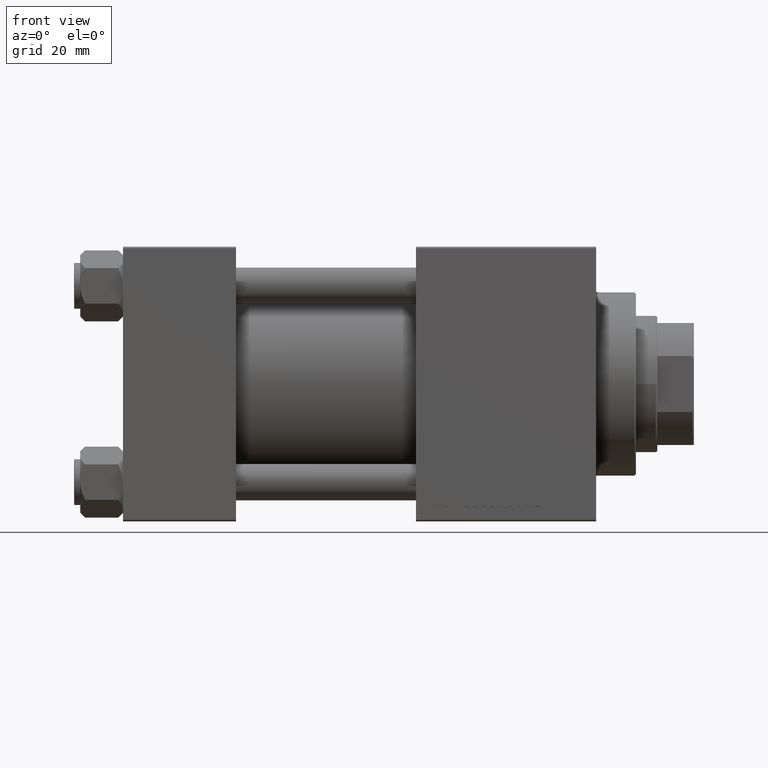
[diagram: clean part render]
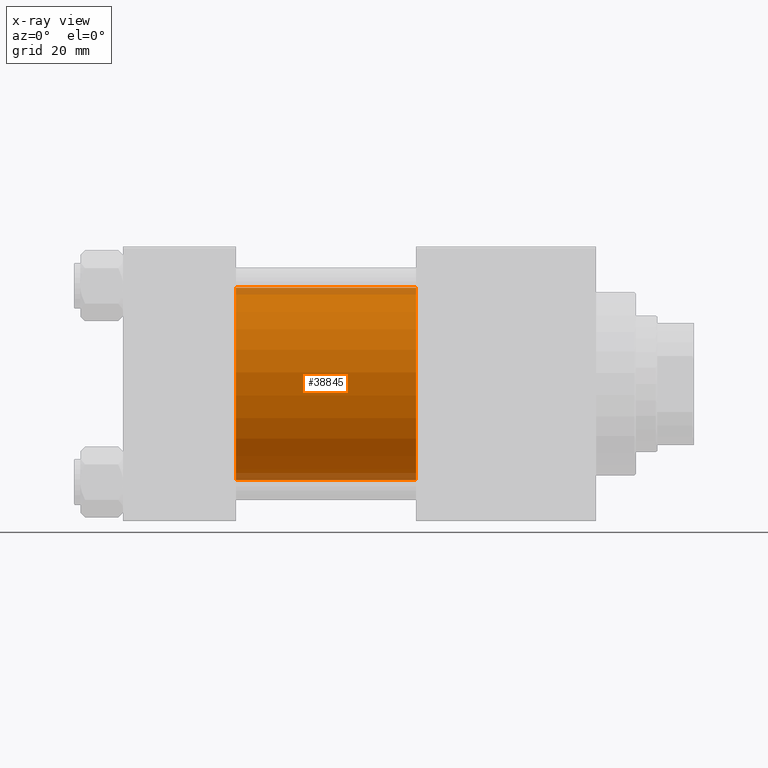
[diagram: x-ray — body ghosted, one internal face saturated and labeled with its STEP entity id]
A machine part, front view, then the same camera in x-ray: the body is ghosted and one INTERNAL B-rep face — a face not visible from any outside direction — is saturated and labeled: STEP entity #38845.
In plain terms, the highlighted cylindrical surface (partial cylindrical patch) has radius 31.5 mm, axis along (-1, -0, -0).
Its self-contained STEP definition (entity closure, byte-faithful):
#472 = DIRECTION ( 'NONE',  ( -1.000000000000000000, -0.000000000000000000, -0.000000000000000000 ) ) ;
#723 = CARTESIAN_POINT ( 'NONE',  ( 37.00000000000000000, 1.255552203348951850E-15, -31.50000000000000000 ) ) ;
#981 = CARTESIAN_POINT ( 'NONE',  ( 96.00000000000000000, -2.602085213965210642E-15, 0.000000000000000000 ) ) ;
#3041 = DIRECTION ( 'NONE',  ( 0.000000000000000000, 0.000000000000000000, -1.000000000000000000 ) ) ;
#6089 = AXIS2_PLACEMENT_3D ( 'NONE', #981, #36329, #21055 ) ;
#6210 = EDGE_CURVE ( 'NONE', #35822, #28202, #21068, .T. ) ;
#6839 = CARTESIAN_POINT ( 'NONE',  ( 96.00000000000000000, -2.602085213965210642E-15, 0.000000000000000000 ) ) ;
#9241 = CARTESIAN_POINT ( 'NONE',  ( 96.00000000000000000, 1.255552203348951850E-15, -31.50000000000000000 ) ) ;
#9358 = CARTESIAN_POINT ( 'NONE',  ( 96.00000000000000000, -2.602085213965210642E-15, 31.50000000000000000 ) ) ;
#12825 = AXIS2_PLACEMENT_3D ( 'NONE', #6839, #37879, #3041 ) ;
#14010 = VERTEX_POINT ( 'NONE', #723 ) ;
#14068 = EDGE_CURVE ( 'NONE', #43092, #14010, #47276, .T. ) ;
#15612 = EDGE_CURVE ( 'NONE', #28202, #14010, #20882, .T. ) ;
#16887 = VECTOR ( 'NONE', #472, 1000.000000000000000 ) ;
#17234 = FACE_OUTER_BOUND ( 'NONE', #34872, .T. ) ;
#20275 = CARTESIAN_POINT ( 'NONE',  ( 37.00000000000000000, -2.602085213965210642E-15, 31.50000000000000000 ) ) ;
#20807 = CYLINDRICAL_SURFACE ( 'NONE', #6089, 31.50000000000000000 ) ;
#20882 = CIRCLE ( 'NONE', #33897, 31.50000000000000000 ) ;
#21055 = DIRECTION ( 'NONE',  ( 0.000000000000000000, 0.000000000000000000, 1.000000000000000000 ) ) ;
#21068 = LINE ( 'NONE', #9358, #45888 ) ;
#26752 = DIRECTION ( 'NONE',  ( 1.000000000000000000, 0.000000000000000000, 0.000000000000000000 ) ) ;
#28178 = ORIENTED_EDGE ( 'NONE', *, *, #6210, .F. ) ;
#28202 = VERTEX_POINT ( 'NONE', #20275 ) ;
#33842 = ORIENTED_EDGE ( 'NONE', *, *, #15612, .F. ) ;
#33897 = AXIS2_PLACEMENT_3D ( 'NONE', #45113, #26752, #41535 ) ;
#34227 = DIRECTION ( 'NONE',  ( -1.000000000000000000, -0.000000000000000000, -0.000000000000000000 ) ) ;
#34872 = EDGE_LOOP ( 'NONE', ( #49166, #37033, #33842, #28178 ) ) ;
#35807 = CARTESIAN_POINT ( 'NONE',  ( 96.00000000000000000, 1.255552203348951850E-15, -31.50000000000000000 ) ) ;
#35822 = VERTEX_POINT ( 'NONE', #39938 ) ;
#36329 = DIRECTION ( 'NONE',  ( -1.000000000000000000, -0.000000000000000000, -0.000000000000000000 ) ) ;
#37033 = ORIENTED_EDGE ( 'NONE', *, *, #14068, .T. ) ;
#37879 = DIRECTION ( 'NONE',  ( 1.000000000000000000, 0.000000000000000000, 0.000000000000000000 ) ) ;
#38845 = ADVANCED_FACE ( 'NONE', ( #17234 ), #20807, .F. ) ;
#39938 = CARTESIAN_POINT ( 'NONE',  ( 96.00000000000000000, -2.602085213965210642E-15, 31.50000000000000000 ) ) ;
#41535 = DIRECTION ( 'NONE',  ( 0.000000000000000000, 0.000000000000000000, -1.000000000000000000 ) ) ;
#43092 = VERTEX_POINT ( 'NONE', #9241 ) ;
#45113 = CARTESIAN_POINT ( 'NONE',  ( 37.00000000000000000, -2.602085213965210642E-15, 0.000000000000000000 ) ) ;
#45888 = VECTOR ( 'NONE', #34227, 1000.000000000000000 ) ;
#46123 = EDGE_CURVE ( 'NONE', #35822, #43092, #49427, .T. ) ;
#47276 = LINE ( 'NONE', #35807, #16887 ) ;
#49166 = ORIENTED_EDGE ( 'NONE', *, *, #46123, .T. ) ;
#49427 = CIRCLE ( 'NONE', #12825, 31.50000000000000000 ) ;